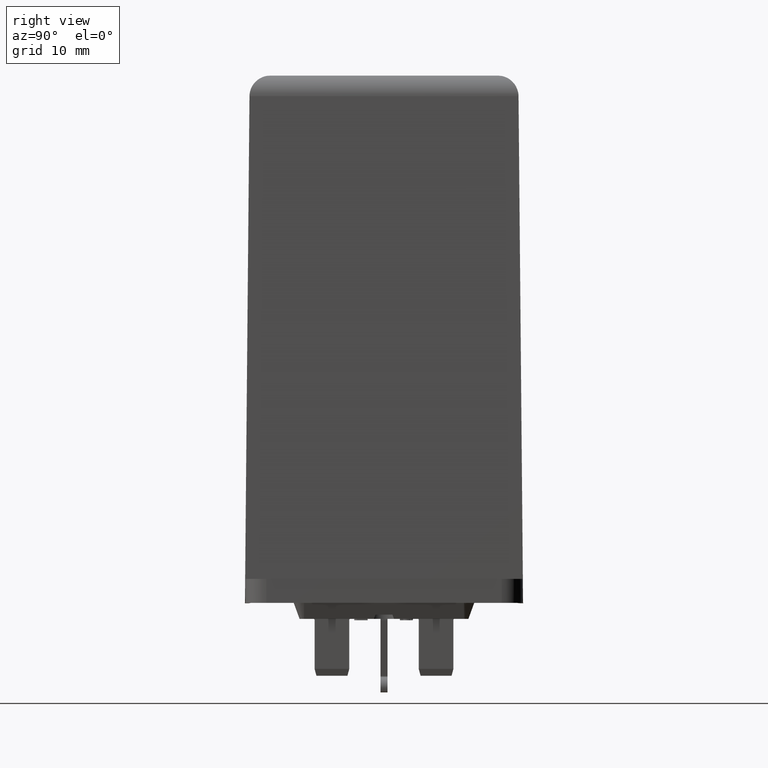
[diagram: clean part render]
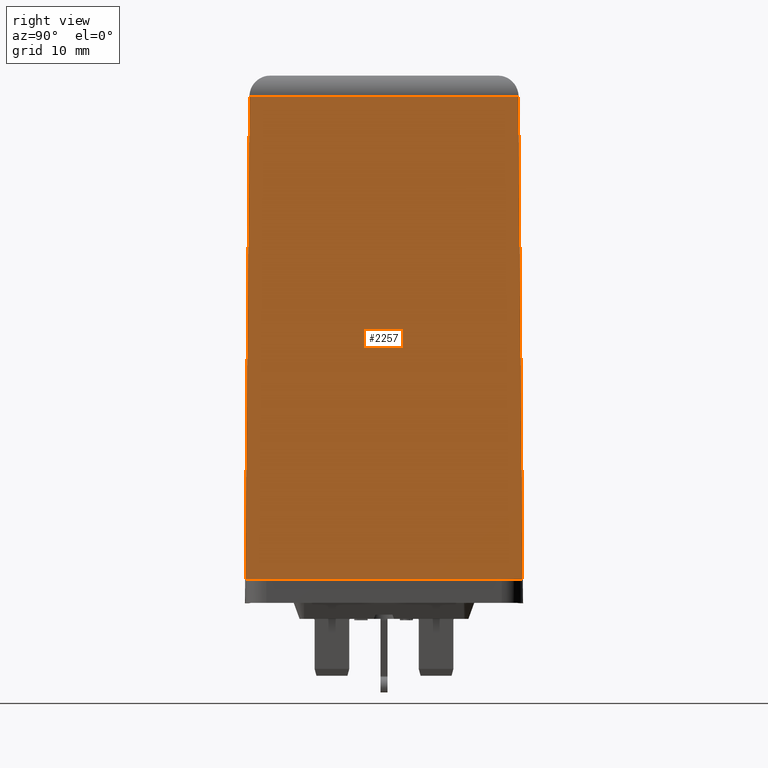
[diagram: same view with one face highlighted and labeled with its STEP entity id]
A machine part, right view. The second image highlights one B-rep face of the part: STEP entity #2257.
In plain terms, the highlighted planar face has unit normal (1, -0, 0.009).
Its self-contained STEP definition (entity closure, byte-faithful):
#1089=CARTESIAN_POINT('',(20.000000000000373,20.000000000000004,-4.261275113934515));
#1090=VERTEX_POINT('',#1089);
#1097=CARTESIAN_POINT('',(20.000000000000181,-20.000000000000004,-4.261275113950378));
#1098=VERTEX_POINT('',#1097);
#1099=CARTESIAN_POINT('',(20.000000000000181,-20.000000000000004,-4.261275113950378));
#1100=DIRECTION('',(4.174439E-015,1.0,3.946399E-013));
#1101=VECTOR('',#1100,40.000000000000007);
#1102=LINE('',#1099,#1101);
#1103=EDGE_CURVE('',#1098,#1090,#1102,.T.);
#1834=CARTESIAN_POINT('',(19.376655419910524,-19.376655419944562,65.265620356859998));
#1835=VERTEX_POINT('',#1834);
#1836=CARTESIAN_POINT('',(20.000000000000032,-20.000000000000238,-4.261275113950262));
#1837=DIRECTION('',(-0.008964796675599,0.008964796675109,0.999919629190836));
#1838=VECTOR('',#1837,69.532483852800780);
#1839=LINE('',#1836,#1838);
#1840=EDGE_CURVE('',#1098,#1835,#1839,.T.);
#2131=CARTESIAN_POINT('',(19.376655419910481,19.376655419889271,65.265620356875402));
#2132=VERTEX_POINT('',#2131);
#2139=CARTESIAN_POINT('',(19.376655419911117,19.376655419890152,65.265620356875189));
#2140=DIRECTION('',(0.008964796675599,0.008964796675898,-0.999919629190829));
#2141=VECTOR('',#2140,69.532483852800723);
#2142=LINE('',#2139,#2141);
#2143=EDGE_CURVE('',#2132,#1090,#2142,.T.);
#2211=CARTESIAN_POINT('',(19.376655419910406,-19.376655419944562,65.265620356860012));
#2212=DIRECTION('',(4.125380E-015,1.0,3.945696E-013));
#2213=VECTOR('',#2212,38.753310839833837);
#2214=LINE('',#2211,#2213);
#2215=EDGE_CURVE('',#1835,#2132,#2214,.T.);
#2246=CARTESIAN_POINT('',(20.000000000000181,-20.000000000000004,-4.261275113950378));
#2247=DIRECTION('',(0.999959812173018,-7.672606E-015,0.008965156936818));
#2248=DIRECTION('',(4.134861E-015,1.0,3.946290E-013));
#2249=AXIS2_PLACEMENT_3D('',#2246,#2247,#2248);
#2250=PLANE('',#2249);
#2251=ORIENTED_EDGE('',*,*,#2143,.F.);
#2252=ORIENTED_EDGE('',*,*,#2215,.F.);
#2253=ORIENTED_EDGE('',*,*,#1840,.F.);
#2254=ORIENTED_EDGE('',*,*,#1103,.T.);
#2255=EDGE_LOOP('',(#2251,#2252,#2253,#2254));
#2256=FACE_OUTER_BOUND('',#2255,.T.);
#2257=ADVANCED_FACE('',(#2256),#2250,.T.);